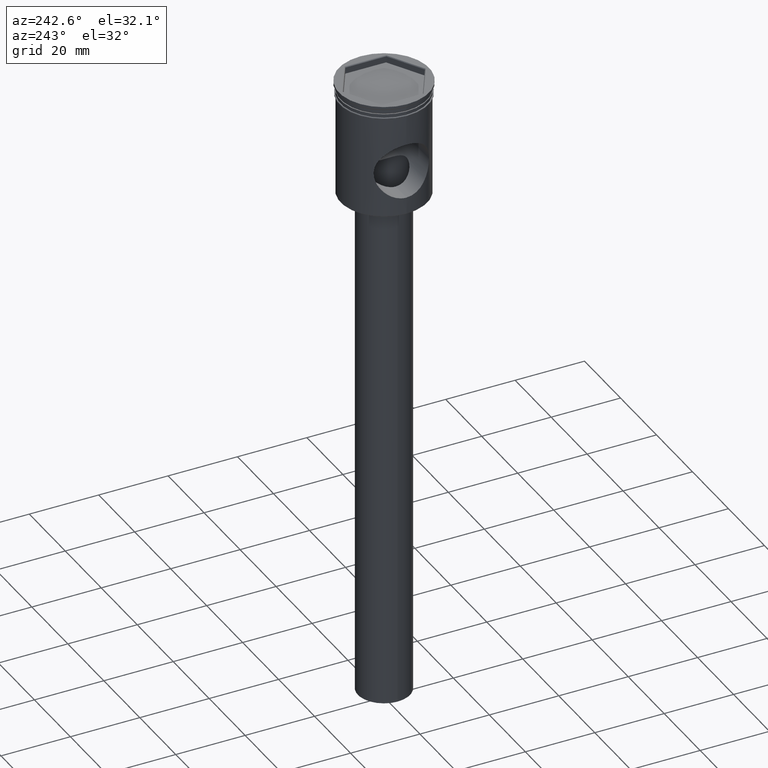
[diagram: clean part render]
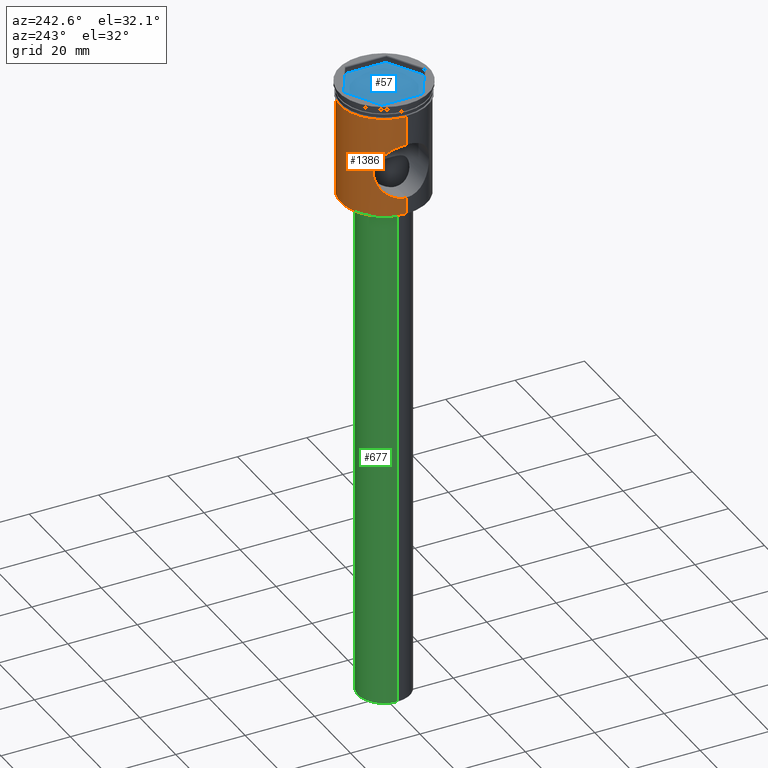
[diagram: same view with three faces highlighted in distinct colors, each labeled with its STEP entity id]
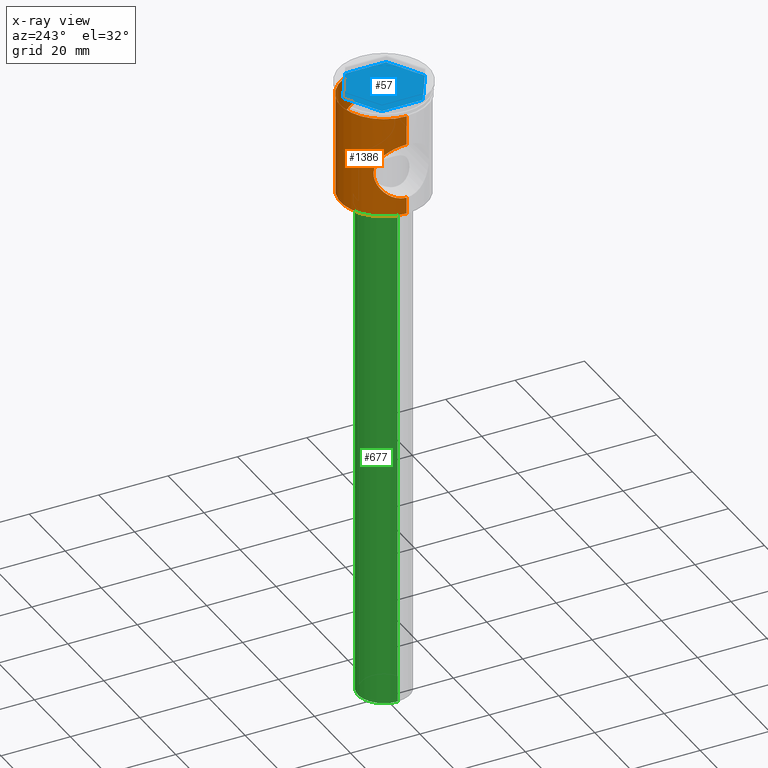
[diagram: x-ray of the same camera — body ghosted, the three highlighted faces saturated]
A machine part, auxiliary view with three faces highlighted in distinct colors.
The next image is the same camera in x-ray (body ghosted, the three faces saturated) — at least one of them is partly hidden behind the body in this view.
Their STEP definitions:

[orange] entity #1386 — the highlighted cylindrical surface (partial cylindrical patch) has radius 12.5 mm, axis along (-0, -0, 1).
#2 = CARTESIAN_POINT ( 'NONE',  ( 10.02037738876441253, 7.473797691934480625, -17.63469963449613331 ) ) ;
#9 = CARTESIAN_POINT ( 'NONE',  ( 11.50038868166273787, 4.919615502726670364, -26.82980181432884237 ) ) ;
#11 = VECTOR ( 'NONE', #1349, 1000.000000000000000 ) ;
#15 = CARTESIAN_POINT ( 'NONE',  ( 11.32278361962054802, 5.310903790031502147, -26.50427824932999243 ) ) ;
#26 = CARTESIAN_POINT ( 'NONE',  ( 9.604895432773121300, 7.999748985399197210, -20.77841958597585403 ) ) ;
#49 = ORIENTED_EDGE ( 'NONE', *, *, #1399, .F. ) ;
#70 = CARTESIAN_POINT ( 'NONE',  ( 12.49999999999999645, 0.000000000000000000, -28.50000000000000355 ) ) ;
#94 = VERTEX_POINT ( 'NONE', #467 ) ;
#100 = CARTESIAN_POINT ( 'NONE',  ( -9.694572521403607368, 7.891132293869996595, -21.84205955273028010 ) ) ;
#103 = ORIENTED_EDGE ( 'NONE', *, *, #396, .F. ) ;
#114 = CARTESIAN_POINT ( 'NONE',  ( -11.82426725651903610, 4.061341696050350336, -13.60264837205234301 ) ) ;
#120 = CARTESIAN_POINT ( 'NONE',  ( 9.695983281617307270, 7.889400511741192723, -21.85205995452213301 ) ) ;
#130 = CARTESIAN_POINT ( 'NONE',  ( -12.22681975302657520, 2.645907749991195601, -28.06777968347508434 ) ) ;
#139 = CARTESIAN_POINT ( 'NONE',  ( -11.49979938796715118, 4.920626020369353704, -26.82866744699284567 ) ) ;
#144 = CARTESIAN_POINT ( 'NONE',  ( 12.32937529947440147, 2.124696089697953649, -28.23112845639077761 ) ) ;
#150 = CARTESIAN_POINT ( 'NONE',  ( 11.50119995780600846, 4.917095492503141152, -14.16884486330757120 ) ) ;
#201 = FACE_OUTER_BOUND ( 'NONE', #1435, .T. ) ;
#210 = CARTESIAN_POINT ( 'NONE',  ( -12.45680753857803147, 1.072351860696458381, -12.56763034230890774 ) ) ;
#237 = CARTESIAN_POINT ( 'NONE',  ( -10.68057655226026803, 6.496405684036826500, -25.17560278568680943 ) ) ;
#241 = CARTESIAN_POINT ( 'NONE',  ( -10.95618371808392233, 6.020532543485914267, -25.77431588019686615 ) ) ;
#246 = CARTESIAN_POINT ( 'NONE',  ( 12.49999999999999289, 0.5455086926773380362, -28.50000000000000000 ) ) ;
#274 = CARTESIAN_POINT ( 'NONE',  ( 12.49999999999999645, 0.000000000000000000, -33.29999999999998295 ) ) ;
#279 = CARTESIAN_POINT ( 'NONE',  ( 10.77000853576665840, 6.353706358841936463, -15.61224821672883678 ) ) ;
#287 = B_SPLINE_CURVE_WITH_KNOTS ( 'NONE', 3,
 ( #1207, #246, #488, #144, #1451, #1437, #611, #9, #15, #1444, #354, #853, #964, #752, #366, #1223, #969, #120, #374, #1103, #26, #500, #979, #1467, #604, #1074, #2, #1250, #1112, #279, #550, #1234, #150, #1241, #1352, #409, #1260, #1023, #765, #418, #770, #877, #894, #384 ),
 .UNSPECIFIED., .F., .F.,
 ( 4, 2, 2, 2, 2, 2, 2, 2, 2, 2, 2, 2, 2, 2, 2, 2, 2, 2, 2, 2, 2, 4 ),
 ( 0.000000000000000000, 0.001610624516364215879, 0.003221249032728431758, 0.004831873549092647636, 0.006442498065456863515, 0.007247810323638976225, 0.008053122581821088935, 0.009663747098185310885, 0.01127437161454953631, 0.01207968387273164815, 0.01288499613091376172, 0.01449562064727799755, 0.01530093290546011807, 0.01610624516364224379, 0.01771686968000649870, 0.01932749419637075361, 0.02093811871273501199, 0.02174343097091713944, 0.02254874322909926690, 0.02415936774546352528, 0.02496468000364565273, 0.02576999226182778019 ),
 .UNSPECIFIED. ) ;
#312 = ORIENTED_EDGE ( 'NONE', *, *, #640, .F. ) ;
#321 = CARTESIAN_POINT ( 'NONE',  ( -9.823930086259025529, 7.730428572254550268, -18.37155159375936719 ) ) ;
#337 = EDGE_CURVE ( 'NONE', #94, #346, #1411, .T. ) ;
#343 = CARTESIAN_POINT ( 'NONE',  ( -10.95468395994246968, 6.033861169773390820, -15.22247198273765179 ) ) ;
#346 = VERTEX_POINT ( 'NONE', #477 ) ;
#349 = CARTESIAN_POINT ( 'NONE',  ( -12.22865895483605314, 2.638290072440495848, -12.92921996348514924 ) ) ;
#354 = CARTESIAN_POINT ( 'NONE',  ( 10.95759851502932669, 6.017955333637137194, -25.77724630296188479 ) ) ;
#360 = CARTESIAN_POINT ( 'NONE',  ( -11.82492588981186543, 4.059453444830931623, -27.39848256787114167 ) ) ;
#366 = CARTESIAN_POINT ( 'NONE',  ( 10.24633185769106802, 7.164154995734958398, -24.09758546550434488 ) ) ;
#374 = CARTESIAN_POINT ( 'NONE',  ( 9.662429422409399393, 7.930242071786063995, -21.58801890745425212 ) ) ;
#384 = CARTESIAN_POINT ( 'NONE',  ( 12.49999999999999645, -3.475392982267206074E-20, -12.50000000000000178 ) ) ;
#396 = EDGE_CURVE ( 'NONE', #1379, #1396, #287, .T. ) ;
#409 = CARTESIAN_POINT ( 'NONE',  ( 11.97039897339418246, 3.607881330226543781, -13.35503377591462559 ) ) ;
#418 = CARTESIAN_POINT ( 'NONE',  ( 12.43000214087199851, 1.347259841825428239, -12.60970857887207153 ) ) ;
#425 = DIRECTION ( 'NONE',  ( -0.000000000000000000, -0.000000000000000000, 1.000000000000000000 ) ) ;
#440 = CARTESIAN_POINT ( 'NONE',  ( -12.04102128605738464, 3.365482873782087658, -13.23757297846051451 ) ) ;
#447 = EDGE_CURVE ( 'NONE', #802, #346, #1359, .T. ) ;
#448 = CARTESIAN_POINT ( 'NONE',  ( 0.000000000000000000, 0.000000000000000000, -3.999999999999996447 ) ) ;
#455 = CARTESIAN_POINT ( 'NONE',  ( 12.49999999999999645, -3.475392982267206074E-20, -12.50000000000000178 ) ) ;
#457 = CARTESIAN_POINT ( 'NONE',  ( -10.24171529436143402, 7.170737983946684935, -16.91536847051583692 ) ) ;
#464 = AXIS2_PLACEMENT_3D ( 'NONE', #1179, #1402, #933 ) ;
#465 = CARTESIAN_POINT ( 'NONE',  ( -12.49134899006260824, 0.5368360781239408519, -12.51349676487751594 ) ) ;
#467 = CARTESIAN_POINT ( 'NONE',  ( -12.49999999999999645, 1.530843252841608374E-15, -12.50000000000000178 ) ) ;
#477 = CARTESIAN_POINT ( 'NONE',  ( -12.49999999999999645, 0.000000000000000000, -28.50000000000000355 ) ) ;
#482 = CARTESIAN_POINT ( 'NONE',  ( -12.42914744973298191, 1.355224675475571683, -28.38894657095907803 ) ) ;
#488 = CARTESIAN_POINT ( 'NONE',  ( 12.46447579769007774, 1.079199628273470157, -28.44481018307721243 ) ) ;
#500 = CARTESIAN_POINT ( 'NONE',  ( 9.604276544737977872, 8.000492014107765115, -19.96508625629939004 ) ) ;
#501 = VECTOR ( 'NONE', #902, 1000.000000000000000 ) ;
#510 = CARTESIAN_POINT ( 'NONE',  ( -12.49999999999999645, 1.530808498934191127E-15, 0.000000000000000000 ) ) ;
#514 = CARTESIAN_POINT ( 'NONE',  ( -12.49999999999999645, 1.530808498934191127E-15, 0.000000000000000000 ) ) ;
#537 = CARTESIAN_POINT ( 'NONE',  ( -12.50000000000000000, 1.530808498934191521E-15, -3.999999999999996447 ) ) ;
#549 = CARTESIAN_POINT ( 'NONE',  ( 12.49999999999999645, 0.000000000000000000, 0.000000000000000000 ) ) ;
#550 = CARTESIAN_POINT ( 'NONE',  ( 10.95569943340932717, 6.032167288263485361, -15.22028665405100512 ) ) ;
#600 = CARTESIAN_POINT ( 'NONE',  ( -11.74602063590885059, 4.281685285502878635, -13.73737400827888422 ) ) ;
#604 = CARTESIAN_POINT ( 'NONE',  ( 9.831927431485986801, 7.719646222588846030, -18.38418844340872127 ) ) ;
#611 = CARTESIAN_POINT ( 'NONE',  ( 11.83084558445469980, 4.061114290533304860, -27.41204444593460821 ) ) ;
#635 = CARTESIAN_POINT ( 'NONE',  ( -11.74577852983650494, 4.282367724400621967, -27.26220930574858059 ) ) ;
#640 = EDGE_CURVE ( 'NONE', #1396, #1097, #1495, .T. ) ;
#646 = DIRECTION ( 'NONE',  ( -0.000000000000000000, -0.000000000000000000, 1.000000000000000000 ) ) ;
#667 = LINE ( 'NONE', #549, #943 ) ;
#675 = CIRCLE ( 'NONE', #1221, 12.50000000000000000 ) ;
#691 = CARTESIAN_POINT ( 'NONE',  ( -9.615781582082339796, 7.986738915949612938, -21.03451077291008531 ) ) ;
#711 = CARTESIAN_POINT ( 'NONE',  ( -9.947500648090192854, 7.573601934444265105, -17.87138436146137366 ) ) ;
#717 = CARTESIAN_POINT ( 'NONE',  ( -11.49685725809058567, 4.911092195449596076, -14.17966420493785051 ) ) ;
#720 = EDGE_CURVE ( 'NONE', #94, #1350, #869, .T. ) ;
#744 = CARTESIAN_POINT ( 'NONE',  ( -11.32275814528974500, 5.311017539796694997, -26.50426606429732601 ) ) ;
#752 = CARTESIAN_POINT ( 'NONE',  ( 10.41453676133786033, 6.920961814154462211, -24.54462048307798128 ) ) ;
#765 = CARTESIAN_POINT ( 'NONE',  ( 12.32774079225238495, 2.134726252461476292, -12.77147006255823136 ) ) ;
#770 = CARTESIAN_POINT ( 'NONE',  ( 12.45636595211378861, 1.077990071471292666, -12.56832314098377346 ) ) ;
#802 = VERTEX_POINT ( 'NONE', #886 ) ;
#828 = DIRECTION ( 'NONE',  ( 1.000000000000000000, 0.000000000000000000, 0.000000000000000000 ) ) ;
#831 = CARTESIAN_POINT ( 'NONE',  ( -9.953764986108037505, 7.561899278404374591, -23.12434326371112192 ) ) ;
#837 = CARTESIAN_POINT ( 'NONE',  ( -10.76964293615448653, 6.354292206984882618, -15.61311065325000591 ) ) ;
#848 = CIRCLE ( 'NONE', #464, 12.49999999999999645 ) ;
#849 = CARTESIAN_POINT ( 'NONE',  ( -10.41397768299478166, 6.921782864204723218, -24.54315654720842232 ) ) ;
#853 = CARTESIAN_POINT ( 'NONE',  ( 10.77326865999855166, 6.342037053953381687, -25.38299917530804350 ) ) ;
#856 = CARTESIAN_POINT ( 'NONE',  ( -12.49999999999999645, 0.000000000000000000, -28.50000000000000355 ) ) ;
#865 = CARTESIAN_POINT ( 'NONE',  ( -12.49104983426664717, 0.5449417703514869427, -28.48603655335807261 ) ) ;
#869 = LINE ( 'NONE', #514, #11 ) ;
#877 = CARTESIAN_POINT ( 'NONE',  ( 12.49132987171840270, 0.5383245889663403894, -12.51352599534948418 ) ) ;
#886 = CARTESIAN_POINT ( 'NONE',  ( -12.49999999999999645, 1.530808498934191127E-15, -33.29999999999998295 ) ) ;
#889 = ORIENTED_EDGE ( 'NONE', *, *, #337, .F. ) ;
#894 = CARTESIAN_POINT ( 'NONE',  ( 12.49999999999999822, 0.2689421781267094524, -12.50000000000000178 ) ) ;
#902 = DIRECTION ( 'NONE',  ( -0.000000000000000000, -0.000000000000000000, 1.000000000000000000 ) ) ;
#923 = CARTESIAN_POINT ( 'NONE',  ( -11.97168173856675466, 3.603696557166357284, -13.35287981243517308 ) ) ;
#927 = DIRECTION ( 'NONE',  ( -0.000000000000000000, -0.000000000000000000, 1.000000000000000000 ) ) ;
#929 = CARTESIAN_POINT ( 'NONE',  ( -9.604607193058786407, 8.000095042092121744, -20.76536489131949992 ) ) ;
#933 = DIRECTION ( 'NONE',  ( -1.000000000000000000, 0.000000000000000000, 0.000000000000000000 ) ) ;
#936 = CARTESIAN_POINT ( 'NONE',  ( -11.22925266099212571, 5.494954958430610326, -14.68017047912132789 ) ) ;
#943 = VECTOR ( 'NONE', #425, 1000.000000000000000 ) ;
#945 = CARTESIAN_POINT ( 'NONE',  ( -12.32814927920563264, 2.133064077394900337, -12.77081634138414401 ) ) ;
#961 = CARTESIAN_POINT ( 'NONE',  ( -10.77171733329285530, 6.344673314144587017, -25.37958406506655251 ) ) ;
#963 = ORIENTED_EDGE ( 'NONE', *, *, #447, .T. ) ;
#964 = CARTESIAN_POINT ( 'NONE',  ( 10.68141965030587848, 6.495024738260809727, -25.17753358840528932 ) ) ;
#966 = ORIENTED_EDGE ( 'NONE', *, *, #1469, .F. ) ;
#969 = CARTESIAN_POINT ( 'NONE',  ( 9.825351555881612242, 7.728608913096384647, -22.63340818634064533 ) ) ;
#979 = CARTESIAN_POINT ( 'NONE',  ( 9.650015180279874372, 7.946443617263751591, -19.43182631452544484 ) ) ;
#1023 = CARTESIAN_POINT ( 'NONE',  ( 12.22838080166956054, 2.639999966342853277, -12.92964855857681350 ) ) ;
#1046 = CARTESIAN_POINT ( 'NONE',  ( -12.49999999999999822, 0.2686376769289312016, -12.50000000000000533 ) ) ;
#1051 = DIRECTION ( 'NONE',  ( 1.000000000000000000, 0.000000000000000000, 0.000000000000000000 ) ) ;
#1065 = ORIENTED_EDGE ( 'NONE', *, *, #720, .T. ) ;
#1069 = CARTESIAN_POINT ( 'NONE',  ( -11.32051845556725489, 5.304942531477344403, -14.50641544213543455 ) ) ;
#1074 = CARTESIAN_POINT ( 'NONE',  ( 9.952560460729568348, 7.563483000275685875, -17.88020587650935056 ) ) ;
#1080 = CARTESIAN_POINT ( 'NONE',  ( -11.97255694559601125, 3.600821400007697459, -27.64858792036709545 ) ) ;
#1083 = VECTOR ( 'NONE', #646, 1000.000000000000000 ) ;
#1097 = VERTEX_POINT ( 'NONE', #1147 ) ;
#1103 = CARTESIAN_POINT ( 'NONE',  ( 9.616846497738414712, 7.985458352474513966, -21.05224936486945353 ) ) ;
#1112 = CARTESIAN_POINT ( 'NONE',  ( 10.41350288148657377, 6.922544769963280054, -16.45796141815630520 ) ) ;
#1147 = CARTESIAN_POINT ( 'NONE',  ( 12.50000000000000000, 0.000000000000000000, -3.999999999999996447 ) ) ;
#1179 = CARTESIAN_POINT ( 'NONE',  ( 0.000000000000000000, 0.000000000000000000, -33.29999999999998295 ) ) ;
#1188 = CARTESIAN_POINT ( 'NONE',  ( -10.24506394556385125, 7.166030281330027840, -24.09455026104629738 ) ) ;
#1194 = CARTESIAN_POINT ( 'NONE',  ( -9.604845950803452936, 7.999808392904742327, -19.96072037956296086 ) ) ;
#1206 = ORIENTED_EDGE ( 'NONE', *, *, #1348, .T. ) ;
#1207 = CARTESIAN_POINT ( 'NONE',  ( 12.49999999999999645, 0.000000000000000000, -28.50000000000000355 ) ) ;
#1221 = AXIS2_PLACEMENT_3D ( 'NONE', #448, #927, #828 ) ;
#1223 = CARTESIAN_POINT ( 'NONE',  ( 9.951847861737379120, 7.567903109691757280, -23.14472692481474425 ) ) ;
#1234 = CARTESIAN_POINT ( 'NONE',  ( 11.32358097886961446, 5.309510908151877651, -14.49404386253077881 ) ) ;
#1241 = CARTESIAN_POINT ( 'NONE',  ( 11.74563317290944831, 4.282692903467038903, -13.73805650301568093 ) ) ;
#1250 = CARTESIAN_POINT ( 'NONE',  ( 10.24149294623592965, 7.171072586796541692, -16.91585289741309595 ) ) ;
#1259 = CARTESIAN_POINT ( 'NONE',  ( 0.000000000000000000, 0.000000000000000000, 0.000000000000000000 ) ) ;
#1260 = CARTESIAN_POINT ( 'NONE',  ( 12.03968295628938812, 3.370349911399050047, -13.23978673405736117 ) ) ;
#1282 = CARTESIAN_POINT ( 'NONE',  ( -12.49999999999999645, 1.530843252841608374E-15, -12.50000000000000178 ) ) ;
#1295 = DIRECTION ( 'NONE',  ( -0.000000000000000000, -0.000000000000000000, 1.000000000000000000 ) ) ;
#1304 = AXIS2_PLACEMENT_3D ( 'NONE', #1259, #1295, #1051 ) ;
#1308 = CARTESIAN_POINT ( 'NONE',  ( -10.02253038761470982, 7.470924704462464483, -23.37288695449094433 ) ) ;
#1319 = CARTESIAN_POINT ( 'NONE',  ( -12.32614486164619372, 2.144181392186815138, -28.22599079984303927 ) ) ;
#1331 = CARTESIAN_POINT ( 'NONE',  ( -12.49999999999999645, 0.2724455289350976028, -28.50000000000000000 ) ) ;
#1337 = CARTESIAN_POINT ( 'NONE',  ( -12.04078069653766647, 3.366168072378722620, -27.76202050384523190 ) ) ;
#1346 = CARTESIAN_POINT ( 'NONE',  ( -11.04913184632836121, 5.848685773200739568, -25.96419292266337919 ) ) ;
#1348 = EDGE_CURVE ( 'NONE', #1530, #802, #848, .T. ) ;
#1349 = DIRECTION ( 'NONE',  ( -0.000000000000000000, -0.000000000000000000, 1.000000000000000000 ) ) ;
#1350 = VERTEX_POINT ( 'NONE', #537 ) ;
#1352 = CARTESIAN_POINT ( 'NONE',  ( 11.82354718861211573, 4.063371894608730273, -13.60388813298232513 ) ) ;
#1359 = LINE ( 'NONE', #510, #501 ) ;
#1379 = VERTEX_POINT ( 'NONE', #70 ) ;
#1386 = ADVANCED_FACE ( 'NONE', ( #201 ), #1506, .T. ) ;
#1396 = VERTEX_POINT ( 'NONE', #455 ) ;
#1399 = EDGE_CURVE ( 'NONE', #1530, #1379, #667, .T. ) ;
#1402 = DIRECTION ( 'NONE',  ( -0.000000000000000000, -0.000000000000000000, 1.000000000000000000 ) ) ;
#1411 = B_SPLINE_CURVE_WITH_KNOTS ( 'NONE', 3,
 ( #1282, #1046, #465, #210, #1549, #945, #349, #440, #923, #114, #600, #1529, #717, #1069, #936, #343, #837, #1432, #457, #711, #321, #1427, #1194, #929, #691, #1413, #100, #1535, #1419, #831, #1308, #1188, #849, #237, #961, #241, #1346, #744, #139, #635, #360, #1080, #1337, #130, #1319, #482, #1458, #865, #1331, #856 ),
 .UNSPECIFIED., .F., .F.,
 ( 4, 2, 2, 2, 2, 2, 2, 2, 2, 2, 2, 2, 2, 2, 2, 2, 2, 2, 2, 2, 2, 2, 2, 2, 4 ),
 ( 0.02576999226182778366, 0.02657439273090745832, 0.02737879319998713298, 0.02898759413814647884, 0.02979199460722615350, 0.03059639507630582123, 0.03140079554538549589, 0.03220519601446516361, 0.03381399695262450600, 0.03542279789078384145, 0.03703159882894318383, 0.03864039976710252622, 0.03944480023618218700, 0.04024920070526185473, 0.04105360117434152245, 0.04185800164342118324, 0.04346680258158051868, 0.04427120305066018641, 0.04507560351973985413, 0.04668440445789921039, 0.04748880492697887812, 0.04829320539605855278, 0.04990200633421790211, 0.05070640680329757677, 0.05151080727237725143 ),
 .UNSPECIFIED. ) ;
#1413 = CARTESIAN_POINT ( 'NONE',  ( -9.660877953051818068, 7.932130301633682379, -21.57471352266809106 ) ) ;
#1419 = CARTESIAN_POINT ( 'NONE',  ( -9.833011243020195025, 7.718267162390876734, -22.62081358739451176 ) ) ;
#1427 = CARTESIAN_POINT ( 'NONE',  ( -9.650481006454381117, 7.945901119098953025, -19.42646661241498052 ) ) ;
#1432 = CARTESIAN_POINT ( 'NONE',  ( -10.41381587689204302, 6.922042856426296353, -16.45722377159888694 ) ) ;
#1435 = EDGE_LOOP ( 'NONE', ( #1206, #963, #889, #1065, #966, #312, #103, #49 ) ) ;
#1437 = CARTESIAN_POINT ( 'NONE',  ( 11.97893811598799729, 3.606041726093997646, -27.66040104288469692 ) ) ;
#1444 = CARTESIAN_POINT ( 'NONE',  ( 11.04973041360231534, 5.847541344671410180, -25.96539333561140950 ) ) ;
#1451 = CARTESIAN_POINT ( 'NONE',  ( 12.22805391727019675, 2.640680350465369308, -28.06978779834291515 ) ) ;
#1458 = CARTESIAN_POINT ( 'NONE',  ( -12.45574482229450020, 1.085222749987466040, -28.43070192023093412 ) ) ;
#1467 = CARTESIAN_POINT ( 'NONE',  ( 9.778867081615890910, 7.786427190026567580, -18.64438907348872476 ) ) ;
#1469 = EDGE_CURVE ( 'NONE', #1097, #1350, #675, .T. ) ;
#1471 = CARTESIAN_POINT ( 'NONE',  ( 12.49999999999999645, 0.000000000000000000, 0.000000000000000000 ) ) ;
#1495 = LINE ( 'NONE', #1471, #1083 ) ;
#1506 = CYLINDRICAL_SURFACE ( 'NONE', #1304, 12.49999999999999645 ) ;
#1529 = CARTESIAN_POINT ( 'NONE',  ( -11.58231855636714513, 4.706562070356852701, -14.02588132130155962 ) ) ;
#1530 = VERTEX_POINT ( 'NONE', #274 ) ;
#1535 = CARTESIAN_POINT ( 'NONE',  ( -9.780592607289706919, 7.784260626568318742, -22.36450508717212671 ) ) ;
#1549 = CARTESIAN_POINT ( 'NONE',  ( -12.43066710745117298, 1.341388092945101862, -12.60866053316501834 ) ) ;

[blue] entity #57 — the highlighted planar face has unit normal (-0, 0, 1).
#53 = CARTESIAN_POINT ( 'NONE',  ( 1.734723475976807094E-15, 11.77794549146836367, -2.000000000000000000 ) ) ;
#57 = ADVANCED_FACE ( 'NONE', ( #557 ), #1166, .T. ) ;
#73 = EDGE_CURVE ( 'NONE', #480, #506, #1513, .T. ) ;
#111 = EDGE_CURVE ( 'NONE', #776, #1284, #1423, .T. ) ;
#116 = VECTOR ( 'NONE', #183, 1000.000000000000114 ) ;
#169 = EDGE_LOOP ( 'NONE', ( #1047, #1484, #861, #265, #1436, #322 ) ) ;
#183 = DIRECTION ( 'NONE',  ( 0.8660254037844387076, -0.4999999999999998890, 0.000000000000000000 ) ) ;
#265 = ORIENTED_EDGE ( 'NONE', *, *, #1409, .T. ) ;
#298 = DIRECTION ( 'NONE',  ( 0.000000000000000000, -1.000000000000000000, 0.000000000000000000 ) ) ;
#310 = LINE ( 'NONE', #884, #1141 ) ;
#322 = ORIENTED_EDGE ( 'NONE', *, *, #997, .T. ) ;
#410 = CARTESIAN_POINT ( 'NONE',  ( -10.20000000000000107, 5.888972745734180059, -2.000000000000000000 ) ) ;
#427 = LINE ( 'NONE', #410, #730 ) ;
#432 = CARTESIAN_POINT ( 'NONE',  ( -8.673617379884035472E-16, -11.77794549146836367, -2.000000000000000000 ) ) ;
#452 = DIRECTION ( 'NONE',  ( 1.000000000000000000, 0.000000000000000000, 0.000000000000000000 ) ) ;
#480 = VERTEX_POINT ( 'NONE', #1497 ) ;
#487 = AXIS2_PLACEMENT_3D ( 'NONE', #833, #1286, #452 ) ;
#506 = VERTEX_POINT ( 'NONE', #1280 ) ;
#509 = CARTESIAN_POINT ( 'NONE',  ( -10.20000000000000107, 5.888972745734180059, -2.000000000000000000 ) ) ;
#543 = VECTOR ( 'NONE', #817, 1000.000000000000000 ) ;
#557 = FACE_OUTER_BOUND ( 'NONE', #169, .T. ) ;
#570 = VECTOR ( 'NONE', #1163, 1000.000000000000114 ) ;
#620 = CARTESIAN_POINT ( 'NONE',  ( 10.20000000000000284, 5.888972745734183611, -2.000000000000000000 ) ) ;
#651 = VECTOR ( 'NONE', #800, 999.9999999999998863 ) ;
#730 = VECTOR ( 'NONE', #298, 1000.000000000000000 ) ;
#755 = CARTESIAN_POINT ( 'NONE',  ( 10.20000000000000284, 5.888972745734183611, -2.000000000000000000 ) ) ;
#776 = VERTEX_POINT ( 'NONE', #53 ) ;
#781 = EDGE_CURVE ( 'NONE', #1078, #776, #1154, .T. ) ;
#794 = LINE ( 'NONE', #901, #116 ) ;
#800 = DIRECTION ( 'NONE',  ( -0.8660254037844387076, -0.4999999999999999445, 0.000000000000000000 ) ) ;
#817 = DIRECTION ( 'NONE',  ( 0.8660254037844388186, 0.4999999999999996669, 0.000000000000000000 ) ) ;
#833 = CARTESIAN_POINT ( 'NONE',  ( 0.000000000000000000, 0.000000000000000000, -2.000000000000000000 ) ) ;
#861 = ORIENTED_EDGE ( 'NONE', *, *, #907, .T. ) ;
#884 = CARTESIAN_POINT ( 'NONE',  ( 10.19999999999999929, -5.888972745734185388, -2.000000000000000000 ) ) ;
#901 = CARTESIAN_POINT ( 'NONE',  ( -10.20000000000000107, -5.888972745734181835, -2.000000000000000000 ) ) ;
#907 = EDGE_CURVE ( 'NONE', #1284, #1505, #427, .T. ) ;
#953 = CARTESIAN_POINT ( 'NONE',  ( -10.20000000000000107, -5.888972745734181835, -2.000000000000000000 ) ) ;
#997 = EDGE_CURVE ( 'NONE', #506, #1078, #310, .T. ) ;
#1047 = ORIENTED_EDGE ( 'NONE', *, *, #781, .T. ) ;
#1078 = VERTEX_POINT ( 'NONE', #620 ) ;
#1113 = DIRECTION ( 'NONE',  ( 2.945714899484625339E-16, 1.000000000000000000, 0.000000000000000000 ) ) ;
#1141 = VECTOR ( 'NONE', #1113, 1000.000000000000000 ) ;
#1154 = LINE ( 'NONE', #755, #570 ) ;
#1163 = DIRECTION ( 'NONE',  ( -0.8660254037844387076, 0.4999999999999997780, 0.000000000000000000 ) ) ;
#1166 = PLANE ( 'NONE',  #487 ) ;
#1189 = CARTESIAN_POINT ( 'NONE',  ( 1.734723475976807094E-15, 11.77794549146836367, -2.000000000000000000 ) ) ;
#1280 = CARTESIAN_POINT ( 'NONE',  ( 10.19999999999999929, -5.888972745734185388, -2.000000000000000000 ) ) ;
#1284 = VERTEX_POINT ( 'NONE', #509 ) ;
#1286 = DIRECTION ( 'NONE',  ( -0.000000000000000000, 0.000000000000000000, 1.000000000000000000 ) ) ;
#1409 = EDGE_CURVE ( 'NONE', #1505, #480, #794, .T. ) ;
#1423 = LINE ( 'NONE', #1189, #651 ) ;
#1436 = ORIENTED_EDGE ( 'NONE', *, *, #73, .T. ) ;
#1484 = ORIENTED_EDGE ( 'NONE', *, *, #111, .T. ) ;
#1497 = CARTESIAN_POINT ( 'NONE',  ( -8.673617379884035472E-16, -11.77794549146836367, -2.000000000000000000 ) ) ;
#1505 = VERTEX_POINT ( 'NONE', #953 ) ;
#1513 = LINE ( 'NONE', #432, #543 ) ;

[green] entity #677 — the highlighted cylindrical surface (edge-blend (fillet) strip) has radius 7.5 mm, axis along (-0, -0, 1).
#30 = CIRCLE ( 'NONE', #916, 7.500000000000000000 ) ;
#50 = LINE ( 'NONE', #1473, #91 ) ;
#72 = CARTESIAN_POINT ( 'NONE',  ( 0.000000000000000000, 0.000000000000000000, -183.5000000000000000 ) ) ;
#76 = ORIENTED_EDGE ( 'NONE', *, *, #971, .F. ) ;
#91 = VECTOR ( 'NONE', #649, 1000.000000000000000 ) ;
#152 = VECTOR ( 'NONE', #694, 1000.000000000000000 ) ;
#170 = VERTEX_POINT ( 'NONE', #1439 ) ;
#173 = DIRECTION ( 'NONE',  ( 0.000000000000000000, 0.000000000000000000, -1.000000000000000000 ) ) ;
#175 = CARTESIAN_POINT ( 'NONE',  ( 0.000000000000000000, 0.000000000000000000, -36.50000000000000711 ) ) ;
#194 = CARTESIAN_POINT ( 'NONE',  ( -7.500000000000000000, 9.184850993605147944E-16, -36.50000000000000711 ) ) ;
#198 = CARTESIAN_POINT ( 'NONE',  ( 7.500000000000000000, 0.000000000000000000, -183.5000000000000000 ) ) ;
#260 = CYLINDRICAL_SURFACE ( 'NONE', #270, 7.500000000000000000 ) ;
#270 = AXIS2_PLACEMENT_3D ( 'NONE', #498, #792, #767 ) ;
#306 = VERTEX_POINT ( 'NONE', #590 ) ;
#382 = FACE_OUTER_BOUND ( 'NONE', #610, .T. ) ;
#386 = ORIENTED_EDGE ( 'NONE', *, *, #1116, .T. ) ;
#422 = DIRECTION ( 'NONE',  ( -1.000000000000000000, 0.000000000000000000, 0.000000000000000000 ) ) ;
#441 = ORIENTED_EDGE ( 'NONE', *, *, #1124, .F. ) ;
#498 = CARTESIAN_POINT ( 'NONE',  ( 0.000000000000000000, 0.000000000000000000, -183.5000000000000000 ) ) ;
#590 = CARTESIAN_POINT ( 'NONE',  ( -7.500000000000000000, 9.184850993605147944E-16, -183.5000000000000000 ) ) ;
#610 = EDGE_LOOP ( 'NONE', ( #76, #999, #386, #441 ) ) ;
#642 = AXIS2_PLACEMENT_3D ( 'NONE', #72, #173, #993 ) ;
#649 = DIRECTION ( 'NONE',  ( -0.000000000000000000, -0.000000000000000000, 1.000000000000000000 ) ) ;
#671 = DIRECTION ( 'NONE',  ( 0.000000000000000000, 0.000000000000000000, -1.000000000000000000 ) ) ;
#677 = ADVANCED_FACE ( 'NONE', ( #382 ), #260, .T. ) ;
#694 = DIRECTION ( 'NONE',  ( -0.000000000000000000, -0.000000000000000000, 1.000000000000000000 ) ) ;
#767 = DIRECTION ( 'NONE',  ( 1.000000000000000000, 0.000000000000000000, 0.000000000000000000 ) ) ;
#779 = CARTESIAN_POINT ( 'NONE',  ( 7.500000000000000000, 0.000000000000000000, -36.50000000000000711 ) ) ;
#792 = DIRECTION ( 'NONE',  ( -0.000000000000000000, -0.000000000000000000, 1.000000000000000000 ) ) ;
#916 = AXIS2_PLACEMENT_3D ( 'NONE', #175, #671, #422 ) ;
#971 = EDGE_CURVE ( 'NONE', #306, #170, #1240, .T. ) ;
#973 = VERTEX_POINT ( 'NONE', #194 ) ;
#993 = DIRECTION ( 'NONE',  ( -1.000000000000000000, 0.000000000000000000, 0.000000000000000000 ) ) ;
#999 = ORIENTED_EDGE ( 'NONE', *, *, #1174, .T. ) ;
#1027 = LINE ( 'NONE', #198, #152 ) ;
#1049 = VERTEX_POINT ( 'NONE', #779 ) ;
#1116 = EDGE_CURVE ( 'NONE', #973, #1049, #30, .T. ) ;
#1124 = EDGE_CURVE ( 'NONE', #170, #1049, #1027, .T. ) ;
#1174 = EDGE_CURVE ( 'NONE', #306, #973, #50, .T. ) ;
#1240 = CIRCLE ( 'NONE', #642, 7.500000000000000000 ) ;
#1439 = CARTESIAN_POINT ( 'NONE',  ( 7.500000000000000000, 0.000000000000000000, -183.5000000000000000 ) ) ;
#1473 = CARTESIAN_POINT ( 'NONE',  ( -7.500000000000000000, 9.184850993605147944E-16, -183.5000000000000000 ) ) ;